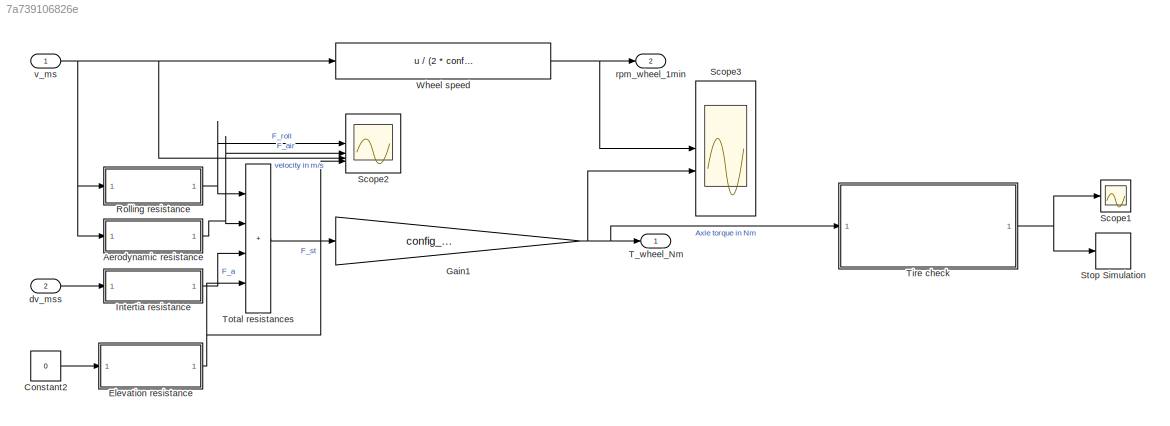
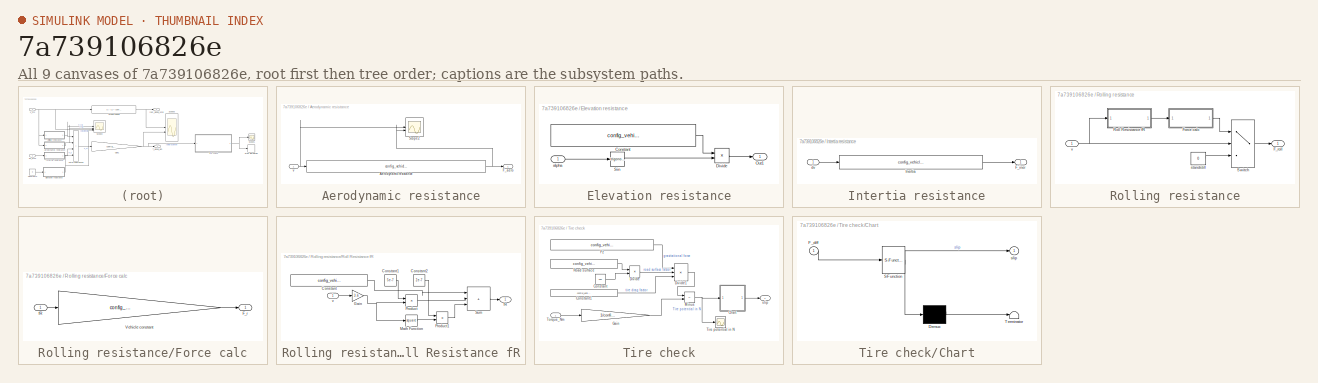
[diagram: thumbnail index - all 9 canvases of the model, root first then tree order]
MODEL slx_7a739106826e
KIND model
CONFIG AbsTol = auto
CONFIG EnableMultiTasking = off
CONFIG FixedStep = auto
CONFIG MaxStep = auto
CONFIG MinStep = auto
CONFIG RelTol = 1e-3
CONFIG SampleTimeConstraint = Unconstrained
CONFIG SolverName = FixedStepAuto
CONFIG StartTime = 0.0
CONFIG StopTime = 1800
BLOCK [SubSystem] Aerodynamic resistance
BLOCK [Fcn] Aerodynamic resistance/Aerodynamic resistance
  Expr = config_vehicle.air_density/2*config_vehicle.cw_air*config_vehicle.frontal_area*u^2
BLOCK [Outport] Aerodynamic resistance/F_aero
  VectorParamsAs1DForOutWhenUnconnected = off
BLOCK [Scope] Aerodynamic resistance/Scope2
  Floating = off
  NumInputPorts = 4
  ScopeSpecificationString = Simulink.scopes.TimeScopeBlockCfg('CurrentConfiguration', extmgr.ConfigurationSet(extmgr.Configuration('Core','General UI',true),extmgr.Configuration('Core','Source UI',true),extmgr.Configuration('Sources','WiredSimulink',true,'DataLoggingVariableName','ScopeData2'),extmgr.Configuration('Visuals','Time Domain',true,'SerializedDisplays',{struct('MinYLimReal','-7.33416','MaxYLimReal','66.00745','YLa...<+3866ch>
BLOCK [Inport] Aerodynamic resistance/v
BLOCK [Constant] Constant2
  Value = 0
BLOCK [SubSystem] Elevation resistance
BLOCK [Constant] Elevation resistance/Constant
  Value = config_vehicle.mass_total*config_vehicle.gravity_acceleration
BLOCK [Product] Elevation resistance/Divide
  Inputs = **
BLOCK [Outport] Elevation resistance/Out1
BLOCK [Trigonometry] Elevation resistance/Sin
BLOCK [Inport] Elevation resistance/alpha
BLOCK [Gain] Gain1
  Gain = config_vehicle.tire_radius
BLOCK [SubSystem] Intertia resistance
BLOCK [Outport] Intertia resistance/F_iner
  VectorParamsAs1DForOutWhenUnconnected = off
BLOCK [Fcn] Intertia resistance/Inertia
  Expr = config_vehicle.mass_total*config_vehicle.rot_mass_factor*u
BLOCK [Inport] Intertia resistance/dv
BLOCK [SubSystem] Rolling resistance
BLOCK [Outport] Rolling resistance/F_roll
  VectorParamsAs1DForOutWhenUnconnected = off
BLOCK [SubSystem] Rolling resistance/Force calc
BLOCK [Outport] Rolling resistance/Force calc/F_r
BLOCK [Gain] Rolling resistance/Force calc/Vehicle constant
  Gain = config_vehicle.mass_total*config_vehicle.gravity_acceleration
BLOCK [Inport] Rolling resistance/Force calc/fR
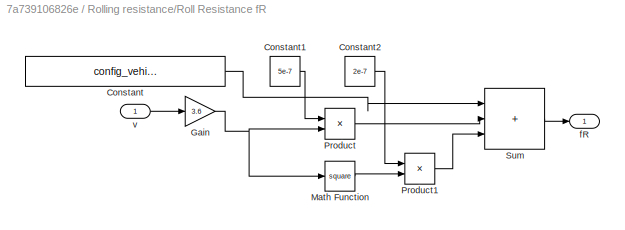
BLOCK [SubSystem] Rolling resistance/Roll Resistance fR
BLOCK [Constant] Rolling resistance/Roll Resistance fR/Constant
  Value = config_vehicle.tire_roll_resistance
BLOCK [Constant] Rolling resistance/Roll Resistance fR/Constant1
  Value = 5e-7
BLOCK [Constant] Rolling resistance/Roll Resistance fR/Constant2
  Value = 2e-7
BLOCK [Gain] Rolling resistance/Roll Resistance fR/Gain
  Gain = 3.6
BLOCK [Math] Rolling resistance/Roll Resistance fR/Math Function
  Operator = square
BLOCK [Product] Rolling resistance/Roll Resistance fR/Product
BLOCK [Product] Rolling resistance/Roll Resistance fR/Product1
BLOCK [Sum] Rolling resistance/Roll Resistance fR/Sum
  IconShape = rectangular
  Inputs = |+++
BLOCK [Outport] Rolling resistance/Roll Resistance fR/fR
BLOCK [Inport] Rolling resistance/Roll Resistance fR/v
BLOCK [Switch] Rolling resistance/Switch
  Criteria = u2 > Threshold
  InputSameDT = off
  SaturateOnIntegerOverflow = off
  Threshold = eps
BLOCK [Constant] Rolling resistance/standstill
  Value = 0
BLOCK [Inport] Rolling resistance/v
BLOCK [Scope] Scope1
  Floating = off
  NumInputPorts = 1
  ScopeSpecificationString = Simulink.scopes.TimeScopeBlockCfg('CurrentConfiguration', extmgr.ConfigurationSet(extmgr.Configuration('Core','General UI',true),extmgr.Configuration('Core','Source UI',true),extmgr.Configuration('Sources','WiredSimulink',true,'DataLoggingVariableName','ScopeData1'),extmgr.Configuration('Visuals','Time Domain',true,'SerializedDisplays',{struct('MinYLimReal','-1.00000','MaxYLimReal','1.00000','YLab...<+1369ch>
BLOCK [Scope] Scope2
  Floating = off
  NumInputPorts = 4
  ScopeSpecificationString = Simulink.scopes.TimeScopeBlockCfg('CurrentConfiguration', extmgr.ConfigurationSet(extmgr.Configuration('Core','General UI',true),extmgr.Configuration('Core','Source UI',true),extmgr.Configuration('Sources','WiredSimulink',true,'DataLoggingVariableName','ScopeData1'),extmgr.Configuration('Visuals','Time Domain',true,'SerializedDisplays',{struct('MinYLimReal','-44.5446','MaxYLimReal','400.9014','YLa...<+3856ch>
BLOCK [Scope] Scope3
  Floating = off
  NumInputPorts = 2
  ScopeSpecificationString = Simulink.scopes.TimeScopeBlockCfg('CurrentConfiguration', extmgr.ConfigurationSet(extmgr.Configuration('Core','General UI',true),extmgr.Configuration('Core','Source UI',true),extmgr.Configuration('Sources','WiredSimulink',true),extmgr.Configuration('Visuals','Time Domain',true,'SerializedDisplays',{struct('MinYLimReal','-158.36313','MaxYLimReal','1425.26815','YLabelReal','','MinYLimMag',' 0.00000'...<+1973ch>
BLOCK [Stop] Stop Simulation
BLOCK [Outport] T_wheel_Nm
  VectorParamsAs1DForOutWhenUnconnected = off
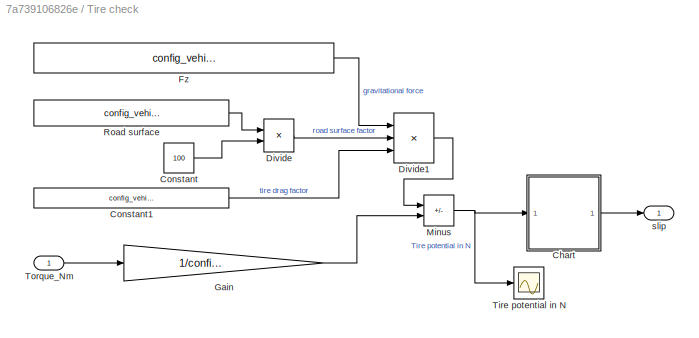
BLOCK [SubSystem] Tire check
BLOCK [SubSystem] Tire check/Chart
  ErrorFcn = Stateflow.Translate.translate
  PermitHierarchicalResolution = ExplicitOnly
  SFBlockType = Chart
  TreatAsAtomicUnit = on
BLOCK [Demux] Tire check/Chart/ Demux 
  Outputs = 1
BLOCK [S-Function] Tire check/Chart/ SFunction 
  EnableBusSupport = on
  FunctionName = sf_sfun
  PortCounts = [1 2]
  SFcnIsStateOwnerBlock = off
  SFunctionDeploymentMode = off
  Tag = Stateflow S-Function 3
BLOCK [Terminator] Tire check/Chart/ Terminator 
BLOCK [Inport] Tire check/Chart/F_diff
BLOCK [Outport] Tire check/Chart/slip
BLOCK [Constant] Tire check/Constant
  Value = 100
BLOCK [Constant] Tire check/Constant1
  Value = config_vehicle.max_acc_rel
BLOCK [Product] Tire check/Divide
  Inputs = */
  RndMeth = Zero
  SaturateOnIntegerOverflow = on
BLOCK [Product] Tire check/Divide1
  Inputs = ***
  RndMeth = Zero
  SaturateOnIntegerOverflow = on
BLOCK [Constant] Tire check/Fz
  Value = config_vehicle.mass_total*config_vehicle.gravity_acceleration
BLOCK [Gain] Tire check/Gain
  Gain = 1/config_vehicle.tire_radius
BLOCK [Sum] Tire check/Minus
  IconShape = rectangular
  Inputs = -+
BLOCK [Constant] Tire check/Road surface
  Value = config_vehicle.road_surface
BLOCK [Scope] Tire check/Tire potential in N
  Floating = off
  NumInputPorts = 1
  ScopeSpecificationString = Simulink.scopes.TimeScopeBlockCfg('CurrentConfiguration', extmgr.ConfigurationSet(extmgr.Configuration('Core','General UI',true),extmgr.Configuration('Core','Source UI',true),extmgr.Configuration('Sources','WiredSimulink',true,'DataLoggingVariableName','ScopeData2'),extmgr.Configuration('Visuals','Time Domain',true,'SerializedDisplays',{struct('MinYLimReal','-15523.67445','MaxYLimReal','-1550.9299...<+1408ch>
BLOCK [Inport] Tire check/Torque_Nm
BLOCK [Outport] Tire check/slip
BLOCK [Sum] Total resistances
  IconShape = rectangular
  InputSameDT = on
  Inputs = ++++
  OutDataTypeStr = Inherit: Same as first input
  SaturateOnIntegerOverflow = on
BLOCK [Fcn] Wheel speed
  Expr = u / (2 * config_vehicle.tire_radius * pi) * 60
BLOCK [Inport] dv_mss
  Port = 2
BLOCK [Outport] rpm_wheel_1min
  Port = 2
  VectorParamsAs1DForOutWhenUnconnected = off
BLOCK [Inport] v_ms
NET Aerodynamic resistance/Aerodynamic resistance:1 -> Aerodynamic resistance/F_aero:1, Aerodynamic resistance/Scope2:2
NET Aerodynamic resistance/v:1 -> Aerodynamic resistance/Aerodynamic resistance:1, Aerodynamic resistance/Scope2:1
NET Aerodynamic resistance:1 -> Scope2:2, Total resistances:2
LINE Constant2:1 -> Elevation resistance:1
LINE Elevation resistance/Constant:1 -> Elevation resistance/Divide:1
LINE Elevation resistance/Divide:1 -> Elevation resistance/Out1:1
LINE Elevation resistance/Sin:1 -> Elevation resistance/Divide:2
LINE Elevation resistance/alpha:1 -> Elevation resistance/Sin:1
NET Elevation resistance:1 -> Scope2:4, Total resistances:4
NET Gain1:1 -> Scope3:2, T_wheel_Nm:1, Tire check:1
LINE Intertia resistance/Inertia:1 -> Intertia resistance/F_iner:1
LINE Intertia resistance/dv:1 -> Intertia resistance/Inertia:1
LINE Intertia resistance:1 -> Total resistances:3
LINE Rolling resistance/Force calc/Vehicle constant:1 -> Rolling resistance/Force calc/F_r:1
LINE Rolling resistance/Force calc/fR:1 -> Rolling resistance/Force calc/Vehicle constant:1
LINE Rolling resistance/Force calc:1 -> Rolling resistance/Switch:1
LINE Rolling resistance/Roll Resistance fR/Constant1:1 -> Rolling resistance/Roll Resistance fR/Product:1
LINE Rolling resistance/Roll Resistance fR/Constant2:1 -> Rolling resistance/Roll Resistance fR/Product1:1
LINE Rolling resistance/Roll Resistance fR/Constant:1 -> Rolling resistance/Roll Resistance fR/Sum:1
NET Rolling resistance/Roll Resistance fR/Gain:1 -> Rolling resistance/Roll Resistance fR/Math Function:1, Rolling resistance/Roll Resistance fR/Product:2
LINE Rolling resistance/Roll Resistance fR/Math Function:1 -> Rolling resistance/Roll Resistance fR/Product1:2
LINE Rolling resistance/Roll Resistance fR/Product1:1 -> Rolling resistance/Roll Resistance fR/Sum:3
LINE Rolling resistance/Roll Resistance fR/Product:1 -> Rolling resistance/Roll Resistance fR/Sum:2
LINE Rolling resistance/Roll Resistance fR/Sum:1 -> Rolling resistance/Roll Resistance fR/fR:1
LINE Rolling resistance/Roll Resistance fR/v:1 -> Rolling resistance/Roll Resistance fR/Gain:1
LINE Rolling resistance/Roll Resistance fR:1 -> Rolling resistance/Force calc:1
LINE Rolling resistance/Switch:1 -> Rolling resistance/F_roll:1
LINE Rolling resistance/standstill:1 -> Rolling resistance/Switch:3
NET Rolling resistance/v:1 -> Rolling resistance/Roll Resistance fR:1, Rolling resistance/Switch:2
NET Rolling resistance:1 -> Scope2:1, Total resistances:1
LINE Tire check/Chart:1 -> Tire check/slip:1
LINE Tire check/Constant1:1 -> Tire check/Divide1:3
LINE Tire check/Constant:1 -> Tire check/Divide:2
LINE Tire check/Divide1:1 -> Tire check/Minus:1
LINE Tire check/Divide:1 -> Tire check/Divide1:2
LINE Tire check/Fz:1 -> Tire check/Divide1:1
LINE Tire check/Gain:1 -> Tire check/Minus:2
NET Tire check/Minus:1 -> Tire check/Chart:1, Tire check/Tire potential in N:1
LINE Tire check/Road surface:1 -> Tire check/Divide:1
LINE Tire check/Torque_Nm:1 -> Tire check/Gain:1
NET Tire check:1 -> Scope1:1, Stop Simulation:1
LINE Total resistances:1 -> Gain1:1
NET Wheel speed:1 -> Scope3:1, rpm_wheel_1min:1
LINE dv_mss:1 -> Intertia resistance:1
NET v_ms:1 -> Aerodynamic resistance:1, Rolling resistance:1, Scope2:3, Wheel speed:1
note: NET lines group one-source signal fan-out (src -> all destinations, sorted); 1:1 wires keep LINE
CHART Tire check/Chart states=0 transitions=6
CHART  states=0 transitions=0
